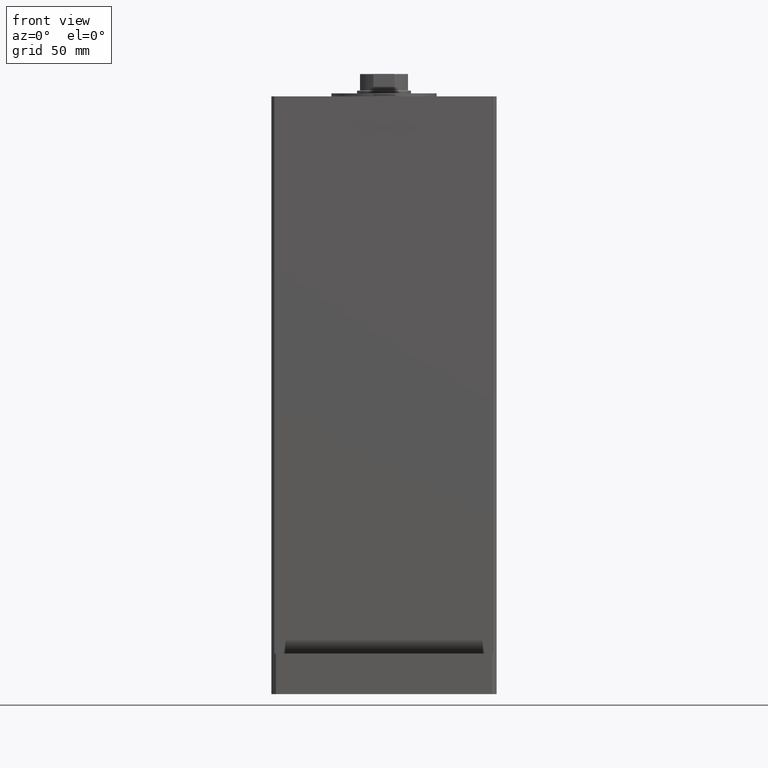
[diagram: clean part render]
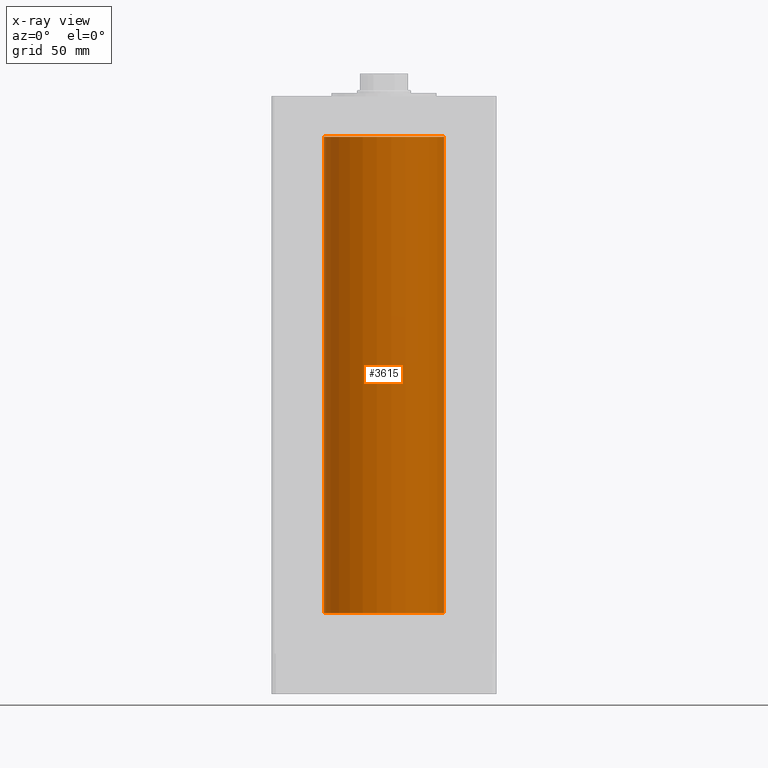
[diagram: x-ray — body ghosted, one internal face saturated and labeled with its STEP entity id]
A machine part, front view, then the same camera in x-ray: the body is ghosted and one INTERNAL B-rep face — a face not visible from any outside direction — is saturated and labeled: STEP entity #3615.
In plain terms, the highlighted cylindrical surface (partial cylindrical patch) has radius 40 mm, axis along (-0, -0, -1).
Its self-contained STEP definition (entity closure, byte-faithful):
#422 = CARTESIAN_POINT ( 'NONE',  ( -40.00000000000000000, 0.000000000000000000, 317.0000000000000000 ) ) ;
#740 = EDGE_CURVE ( 'NONE', #22820, #8840, #25047, .T. ) ;
#1337 = DIRECTION ( 'NONE',  ( -0.000000000000000000, -0.000000000000000000, -1.000000000000000000 ) ) ;
#3615 = ADVANCED_FACE ( 'NONE', ( #29957 ), #38564, .F. ) ;
#4470 = VERTEX_POINT ( 'NONE', #17349 ) ;
#7520 = DIRECTION ( 'NONE',  ( 1.000000000000000000, 0.000000000000000000, 0.000000000000000000 ) ) ;
#7928 = CARTESIAN_POINT ( 'NONE',  ( 40.00000000000000000, 4.898587196589413026E-15, 317.0000000000000000 ) ) ;
#8009 = EDGE_LOOP ( 'NONE', ( #19220, #56516, #16970, #26694 ) ) ;
#8296 = CARTESIAN_POINT ( 'NONE',  ( -40.00000000000000000, 0.000000000000000000, 317.0000000000000000 ) ) ;
#8840 = VERTEX_POINT ( 'NONE', #7928 ) ;
#9047 = DIRECTION ( 'NONE',  ( -0.000000000000000000, -0.000000000000000000, -1.000000000000000000 ) ) ;
#11353 = DIRECTION ( 'NONE',  ( -1.000000000000000000, 0.000000000000000000, 0.000000000000000000 ) ) ;
#11405 = CARTESIAN_POINT ( 'NONE',  ( -40.00000000000000000, 0.000000000000000000, 0.000000000000000000 ) ) ;
#16970 = ORIENTED_EDGE ( 'NONE', *, *, #33567, .F. ) ;
#17349 = CARTESIAN_POINT ( 'NONE',  ( 40.00000000000000000, 4.898587196589413026E-15, 0.000000000000000000 ) ) ;
#19086 = VECTOR ( 'NONE', #9047, 1000.000000000000000 ) ;
#19220 = ORIENTED_EDGE ( 'NONE', *, *, #740, .T. ) ;
#19712 = VECTOR ( 'NONE', #1337, 1000.000000000000000 ) ;
#22820 = VERTEX_POINT ( 'NONE', #8296 ) ;
#22960 = AXIS2_PLACEMENT_3D ( 'NONE', #23629, #30606, #39509 ) ;
#23130 = CARTESIAN_POINT ( 'NONE',  ( 40.00000000000000000, 4.898587196589413026E-15, 317.0000000000000000 ) ) ;
#23629 = CARTESIAN_POINT ( 'NONE',  ( 0.000000000000000000, 0.000000000000000000, 0.000000000000000000 ) ) ;
#25047 = CIRCLE ( 'NONE', #33323, 40.00000000000000000 ) ;
#26694 = ORIENTED_EDGE ( 'NONE', *, *, #55091, .F. ) ;
#27438 = LINE ( 'NONE', #23130, #19712 ) ;
#27637 = VERTEX_POINT ( 'NONE', #11405 ) ;
#29957 = FACE_OUTER_BOUND ( 'NONE', #8009, .T. ) ;
#30606 = DIRECTION ( 'NONE',  ( -0.000000000000000000, 0.000000000000000000, 1.000000000000000000 ) ) ;
#33147 = CARTESIAN_POINT ( 'NONE',  ( 0.000000000000000000, 0.000000000000000000, 317.0000000000000000 ) ) ;
#33323 = AXIS2_PLACEMENT_3D ( 'NONE', #55655, #42786, #7520 ) ;
#33567 = EDGE_CURVE ( 'NONE', #27637, #4470, #47658, .T. ) ;
#33976 = DIRECTION ( 'NONE',  ( -0.000000000000000000, -0.000000000000000000, -1.000000000000000000 ) ) ;
#34565 = LINE ( 'NONE', #422, #19086 ) ;
#38564 = CYLINDRICAL_SURFACE ( 'NONE', #51713, 40.00000000000000000 ) ;
#39509 = DIRECTION ( 'NONE',  ( 1.000000000000000000, 0.000000000000000000, 0.000000000000000000 ) ) ;
#42786 = DIRECTION ( 'NONE',  ( -0.000000000000000000, 0.000000000000000000, 1.000000000000000000 ) ) ;
#43666 = EDGE_CURVE ( 'NONE', #8840, #4470, #27438, .T. ) ;
#47658 = CIRCLE ( 'NONE', #22960, 40.00000000000000000 ) ;
#51713 = AXIS2_PLACEMENT_3D ( 'NONE', #33147, #33976, #11353 ) ;
#55091 = EDGE_CURVE ( 'NONE', #22820, #27637, #34565, .T. ) ;
#55655 = CARTESIAN_POINT ( 'NONE',  ( 0.000000000000000000, 0.000000000000000000, 317.0000000000000000 ) ) ;
#56516 = ORIENTED_EDGE ( 'NONE', *, *, #43666, .T. ) ;